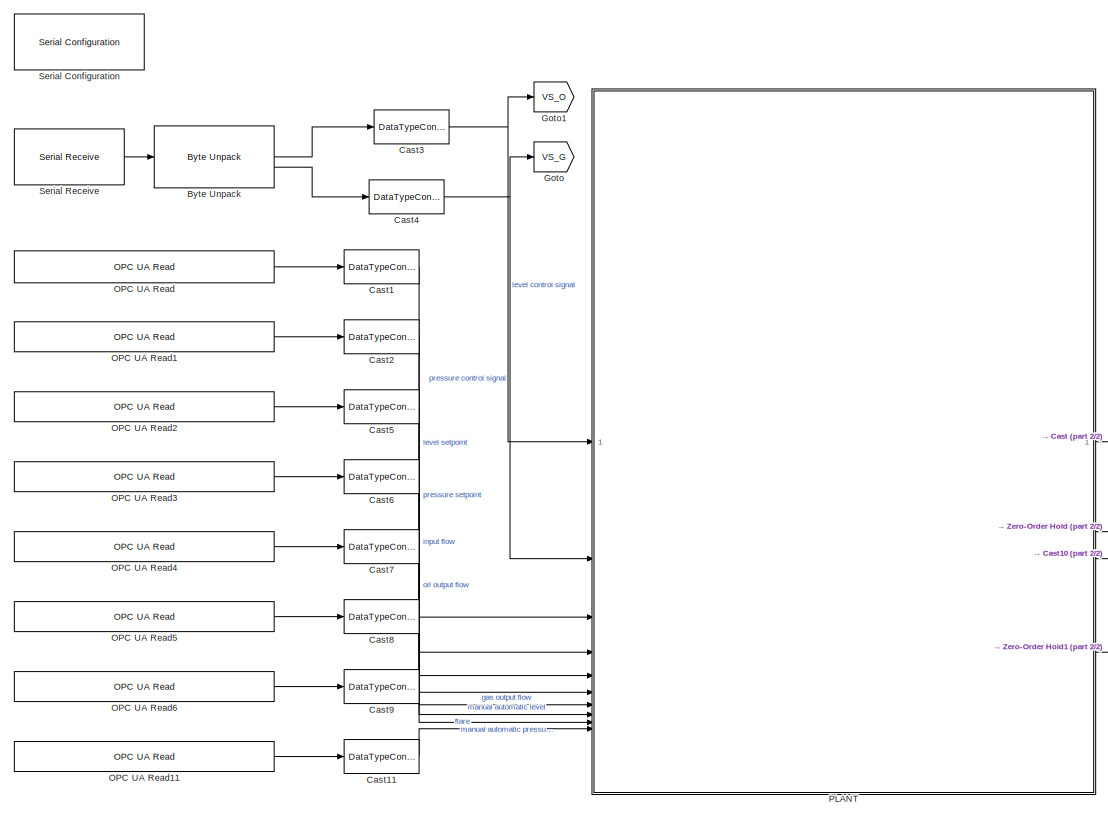
[diagram: root canvas - part 1/2, left side, full height]
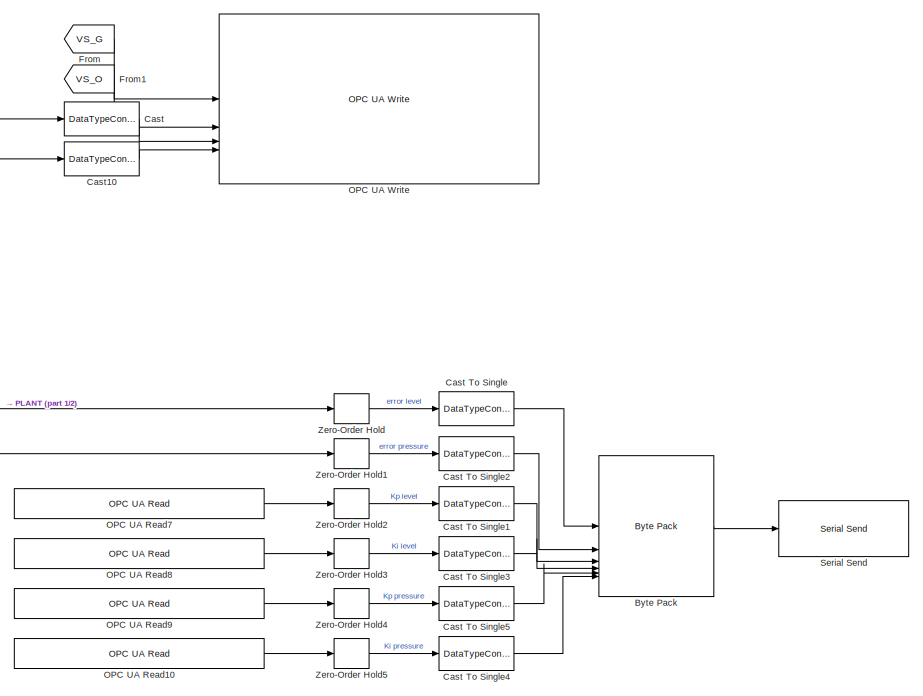
[diagram: root canvas - part 2/2, right side, full height]
MODEL slx_cb2808d3a51f
KIND model
CONFIG AbsTol = auto
CONFIG EnableMultiTasking = on
CONFIG FixedStep = auto
CONFIG MaxStep = auto
CONFIG MinStep = auto
CONFIG RelTol = 1e-3
CONFIG SampleTimeConstraint = Unconstrained
CONFIG SolverName = FixedStepAuto
CONFIG StartTime = 0.0
CONFIG StopTime = inf
BLOCK [Reference] Byte Pack  REF=svdutilitieslib/Byte Pack
  SourceBlock = svdutilitieslib/Byte Pack
  SourceType = Byte pack
BLOCK [Reference] Byte Unpack  REF=svdutilitieslib/Byte Unpack
  LibrarySourceBlock = c2000lib/Target Communication/Byte Unpack
  SourceBlock = svdutilitieslib/Byte Unpack
  SourceType = Byte Unpack
BLOCK [DataTypeConversion] Cast
  OutDataTypeStr = single
  RndMeth = Floor
  SaturateOnIntegerOverflow = off
BLOCK [DataTypeConversion] Cast To Single
  OutDataTypeStr = single
  RndMeth = Floor
  SaturateOnIntegerOverflow = off
BLOCK [DataTypeConversion] Cast To Single1
  OutDataTypeStr = single
  RndMeth = Floor
  SaturateOnIntegerOverflow = off
BLOCK [DataTypeConversion] Cast To Single2
  OutDataTypeStr = single
  RndMeth = Floor
  SaturateOnIntegerOverflow = off
BLOCK [DataTypeConversion] Cast To Single3
  OutDataTypeStr = single
  RndMeth = Floor
  SaturateOnIntegerOverflow = off
BLOCK [DataTypeConversion] Cast To Single4
  OutDataTypeStr = single
  RndMeth = Floor
  SaturateOnIntegerOverflow = off
BLOCK [DataTypeConversion] Cast To Single5
  OutDataTypeStr = single
  RndMeth = Floor
  SaturateOnIntegerOverflow = off
BLOCK [DataTypeConversion] Cast1
  OutDataTypeStr = single
  RndMeth = Floor
  SaturateOnIntegerOverflow = off
BLOCK [DataTypeConversion] Cast10
  OutDataTypeStr = single
  RndMeth = Floor
  SaturateOnIntegerOverflow = off
BLOCK [DataTypeConversion] Cast11
  OutDataTypeStr = single
  RndMeth = Floor
  SaturateOnIntegerOverflow = off
BLOCK [DataTypeConversion] Cast2
  OutDataTypeStr = single
  RndMeth = Floor
  SaturateOnIntegerOverflow = off
BLOCK [DataTypeConversion] Cast3
  OutDataTypeStr = single
  RndMeth = Floor
  SaturateOnIntegerOverflow = off
BLOCK [DataTypeConversion] Cast4
  OutDataTypeStr = single
  RndMeth = Floor
  SaturateOnIntegerOverflow = off
BLOCK [DataTypeConversion] Cast5
  OutDataTypeStr = single
  RndMeth = Floor
  SaturateOnIntegerOverflow = off
BLOCK [DataTypeConversion] Cast6
  OutDataTypeStr = single
  RndMeth = Floor
  SaturateOnIntegerOverflow = off
BLOCK [DataTypeConversion] Cast7
  OutDataTypeStr = single
  RndMeth = Floor
  SaturateOnIntegerOverflow = off
BLOCK [DataTypeConversion] Cast8
  OutDataTypeStr = boolean
  RndMeth = Floor
  SaturateOnIntegerOverflow = off
BLOCK [DataTypeConversion] Cast9
  OutDataTypeStr = boolean
  RndMeth = Floor
  SaturateOnIntegerOverflow = off
BLOCK [From] From
  GotoTag = VS_G
BLOCK [From] From1
  GotoTag = VS_O
BLOCK [Goto] Goto
  GotoTag = VS_G
BLOCK [Goto] Goto1
  GotoTag = VS_O
BLOCK [Reference] OPC UA Read  REF=opcualib/OPC UA Read
  SourceBlock = opcualib/OPC UA Read
  SourceType = opcUARead
BLOCK [Reference] OPC UA Read1  REF=opcualib/OPC UA Read
  SourceBlock = opcualib/OPC UA Read
  SourceType = opcUARead
BLOCK [Reference] OPC UA Read10  REF=opcualib/OPC UA Read
  SourceBlock = opcualib/OPC UA Read
  SourceType = opcUARead
BLOCK [Reference] OPC UA Read11  REF=opcualib/OPC UA Read
  SourceBlock = opcualib/OPC UA Read
  SourceType = opcUARead
BLOCK [Reference] OPC UA Read2  REF=opcualib/OPC UA Read
  SourceBlock = opcualib/OPC UA Read
  SourceType = opcUARead
BLOCK [Reference] OPC UA Read3  REF=opcualib/OPC UA Read
  SourceBlock = opcualib/OPC UA Read
  SourceType = opcUARead
BLOCK [Reference] OPC UA Read4  REF=opcualib/OPC UA Read
  SourceBlock = opcualib/OPC UA Read
  SourceType = opcUARead
BLOCK [Reference] OPC UA Read5  REF=opcualib/OPC UA Read
  SourceBlock = opcualib/OPC UA Read
  SourceType = opcUARead
BLOCK [Reference] OPC UA Read6  REF=opcualib/OPC UA Read
  SourceBlock = opcualib/OPC UA Read
  SourceType = opcUARead
BLOCK [Reference] OPC UA Read7  REF=opcualib/OPC UA Read
  SourceBlock = opcualib/OPC UA Read
  SourceType = opcUARead
BLOCK [Reference] OPC UA Read8  REF=opcualib/OPC UA Read
  SourceBlock = opcualib/OPC UA Read
  SourceType = opcUARead
BLOCK [Reference] OPC UA Read9  REF=opcualib/OPC UA Read
  SourceBlock = opcualib/OPC UA Read
  SourceType = opcUARead
BLOCK [Reference] OPC UA Write  REF=opcualib/OPC UA Write
  SourceBlock = opcualib/OPC UA Write
  SourceType = opcUAWrite
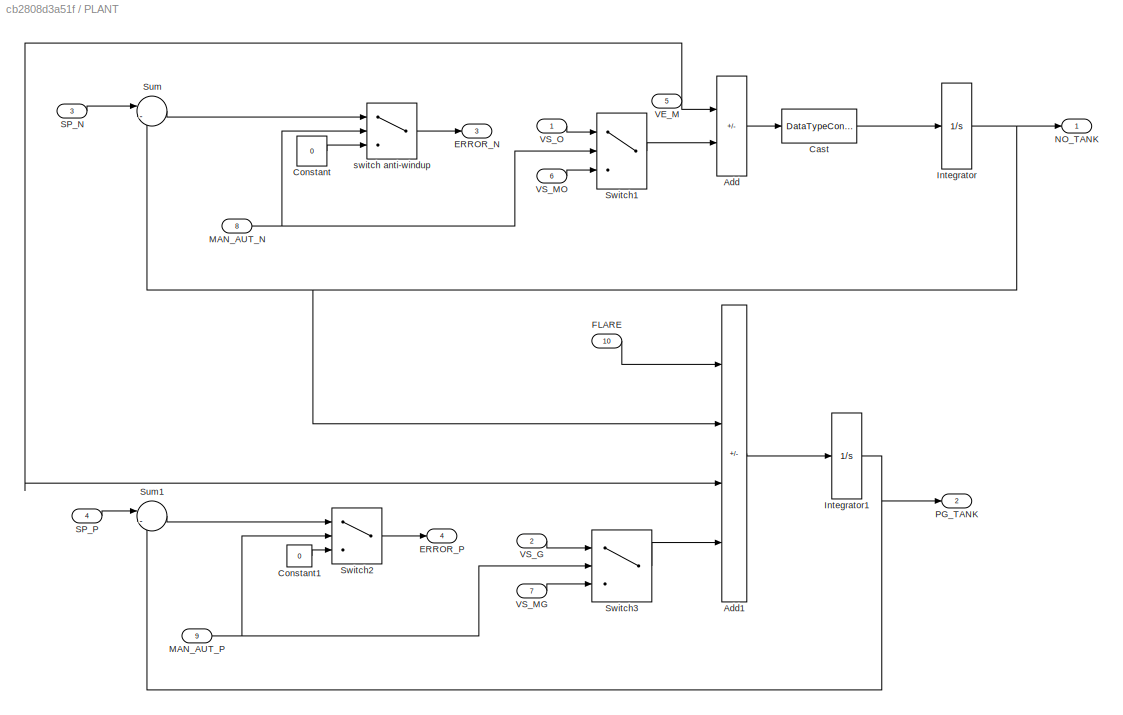
BLOCK [SubSystem] PLANT
BLOCK [Sum] PLANT/Add
  IconShape = rectangular
  Inputs = +-
BLOCK [Sum] PLANT/Add1
  IconShape = rectangular
  Inputs = -++-
BLOCK [DataTypeConversion] PLANT/Cast
  OutDataTypeStr = double
  RndMeth = Floor
  SaturateOnIntegerOverflow = off
BLOCK [Constant] PLANT/Constant
  Value = 0
BLOCK [Constant] PLANT/Constant1
  Value = 0
BLOCK [Outport] PLANT/ERROR_N
  Port = 3
BLOCK [Outport] PLANT/ERROR_P
  Port = 4
BLOCK [Inport] PLANT/FLARE
  Port = 10
BLOCK [Integrator] PLANT/Integrator
  LimitOutput = on
  LowerSaturationLimit = 0
  UpperSaturationLimit = 100
BLOCK [Integrator] PLANT/Integrator1
  LimitOutput = on
  LowerSaturationLimit = 0
  UpperSaturationLimit = 100
BLOCK [Inport] PLANT/MAN_AUT_N
  Port = 8
BLOCK [Inport] PLANT/MAN_AUT_P
  Port = 9
BLOCK [Outport] PLANT/NO_TANK
BLOCK [Outport] PLANT/PG_TANK
  Port = 2
BLOCK [Inport] PLANT/SP_N
  Port = 3
BLOCK [Inport] PLANT/SP_P
  Port = 4
BLOCK [Sum] PLANT/Sum
  Inputs = |-+
BLOCK [Sum] PLANT/Sum1
  Inputs = |-+
BLOCK [Switch] PLANT/Switch1
  InputSameDT = off
  SaturateOnIntegerOverflow = off
  Threshold = 1
BLOCK [Switch] PLANT/Switch2
  InputSameDT = off
  SaturateOnIntegerOverflow = off
  Threshold = 1
BLOCK [Switch] PLANT/Switch3
  InputSameDT = off
  SaturateOnIntegerOverflow = off
  Threshold = 1
BLOCK [Inport] PLANT/VE_M
  Port = 5
BLOCK [Inport] PLANT/VS_G
  Port = 2
BLOCK [Inport] PLANT/VS_MG
  Port = 7
BLOCK [Inport] PLANT/VS_MO
  Port = 6
BLOCK [Inport] PLANT/VS_O
BLOCK [Switch] PLANT/switch anti-windup
  InputSameDT = off
  SaturateOnIntegerOverflow = off
  Threshold = 1
BLOCK [Reference] Serial Configuration  REF=instrumentseriallib/Serial Configuration
  LibrarySourceBlock = c2000lib/Host Communication/Serial Configuration
  Priority = -200000
  SourceBlock = instrumentseriallib/Serial Configuration
  SourceType = system.SerialConfiguration
BLOCK [Reference] Serial Receive  REF=instrumentseriallib/Serial Receive
  LibrarySourceBlock = embeddedtargetslib/Host Communication/Serial Receive
  Priority = 1
  SourceBlock = instrumentseriallib/Serial Receive
  SourceType = system.SerialReceive
BLOCK [Reference] Serial Send  REF=instrumentseriallib/Serial Send
  LibrarySourceBlock = instrumentlib/Serial Send
  Priority = 1
  SourceBlock = instrumentseriallib/Serial Send
  SourceType = system.SerialSend
BLOCK [ZeroOrderHold] Zero-Order Hold
  SampleTime = 0.1
BLOCK [ZeroOrderHold] Zero-Order Hold1
  SampleTime = 0.1
BLOCK [ZeroOrderHold] Zero-Order Hold2
  SampleTime = 0.1
BLOCK [ZeroOrderHold] Zero-Order Hold3
  SampleTime = 0.1
BLOCK [ZeroOrderHold] Zero-Order Hold4
  SampleTime = 0.1
BLOCK [ZeroOrderHold] Zero-Order Hold5
  SampleTime = 0.1
LINE Byte Pack:1 -> Serial Send:1
LINE Byte Unpack:1 -> Cast3:1
LINE Byte Unpack:2 -> Cast4:1
LINE Cast To Single1:1 -> Byte Pack:3
LINE Cast To Single2:1 -> Byte Pack:2
LINE Cast To Single3:1 -> Byte Pack:4
LINE Cast To Single4:1 -> Byte Pack:6
LINE Cast To Single5:1 -> Byte Pack:5
LINE Cast To Single:1 -> Byte Pack:1
LINE Cast10:1 -> OPC UA Write:4
LINE Cast11:1 -> PLANT:10
LINE Cast1:1 -> PLANT:3
LINE Cast2:1 -> PLANT:4
NET Cast3:1 -> Goto1:1, PLANT:1
NET Cast4:1 -> Goto:1, PLANT:2
LINE Cast5:1 -> PLANT:5
LINE Cast6:1 -> PLANT:6
LINE Cast7:1 -> PLANT:7
LINE Cast8:1 -> PLANT:8
LINE Cast9:1 -> PLANT:9
LINE Cast:1 -> OPC UA Write:3
LINE From1:1 -> OPC UA Write:2
LINE From:1 -> OPC UA Write:1
LINE OPC UA Read10:1 -> Zero-Order Hold5:1
LINE OPC UA Read11:1 -> Cast11:1
LINE OPC UA Read1:1 -> Cast2:1
LINE OPC UA Read2:1 -> Cast5:1
LINE OPC UA Read3:1 -> Cast6:1
LINE OPC UA Read4:1 -> Cast7:1
LINE OPC UA Read5:1 -> Cast8:1
LINE OPC UA Read6:1 -> Cast9:1
LINE OPC UA Read7:1 -> Zero-Order Hold2:1
LINE OPC UA Read8:1 -> Zero-Order Hold3:1
LINE OPC UA Read9:1 -> Zero-Order Hold4:1
LINE OPC UA Read:1 -> Cast1:1
LINE PLANT/Add1:1 -> PLANT/Integrator1:1
LINE PLANT/Add:1 -> PLANT/Cast:1
LINE PLANT/Cast:1 -> PLANT/Integrator:1
LINE PLANT/Constant1:1 -> PLANT/Switch2:3
LINE PLANT/Constant:1 -> PLANT/switch anti-windup:3
LINE PLANT/FLARE:1 -> PLANT/Add1:1
NET PLANT/Integrator1:1 -> PLANT/PG_TANK:1, PLANT/Sum1:2
NET PLANT/Integrator:1 -> PLANT/Add1:2, PLANT/NO_TANK:1, PLANT/Sum:2
NET PLANT/MAN_AUT_N:1 -> PLANT/Switch1:2, PLANT/switch anti-windup:2
NET PLANT/MAN_AUT_P:1 -> PLANT/Switch2:2, PLANT/Switch3:2
LINE PLANT/SP_N:1 -> PLANT/Sum:1
LINE PLANT/SP_P:1 -> PLANT/Sum1:1
LINE PLANT/Sum1:1 -> PLANT/Switch2:1
LINE PLANT/Sum:1 -> PLANT/switch anti-windup:1
LINE PLANT/Switch1:1 -> PLANT/Add:2
LINE PLANT/Switch2:1 -> PLANT/ERROR_P:1
LINE PLANT/Switch3:1 -> PLANT/Add1:4
NET PLANT/VE_M:1 -> PLANT/Add1:3, PLANT/Add:1
LINE PLANT/VS_G:1 -> PLANT/Switch3:1
LINE PLANT/VS_MG:1 -> PLANT/Switch3:3
LINE PLANT/VS_MO:1 -> PLANT/Switch1:3
LINE PLANT/VS_O:1 -> PLANT/Switch1:1
LINE PLANT/switch anti-windup:1 -> PLANT/ERROR_N:1
LINE PLANT:1 -> Cast:1
LINE PLANT:2 -> Cast10:1
LINE PLANT:3 -> Zero-Order Hold:1
LINE PLANT:4 -> Zero-Order Hold1:1
LINE Serial Receive:1 -> Byte Unpack:1
LINE Zero-Order Hold1:1 -> Cast To Single2:1
LINE Zero-Order Hold2:1 -> Cast To Single1:1
LINE Zero-Order Hold3:1 -> Cast To Single3:1
LINE Zero-Order Hold4:1 -> Cast To Single5:1
LINE Zero-Order Hold5:1 -> Cast To Single4:1
LINE Zero-Order Hold:1 -> Cast To Single:1
note: NET lines group one-source signal fan-out (src -> all destinations, sorted); 1:1 wires keep LINE
